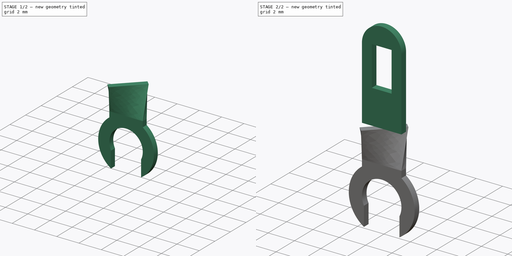
[diagram: build sequence overview — one tinted view per stage of 2, left to right]
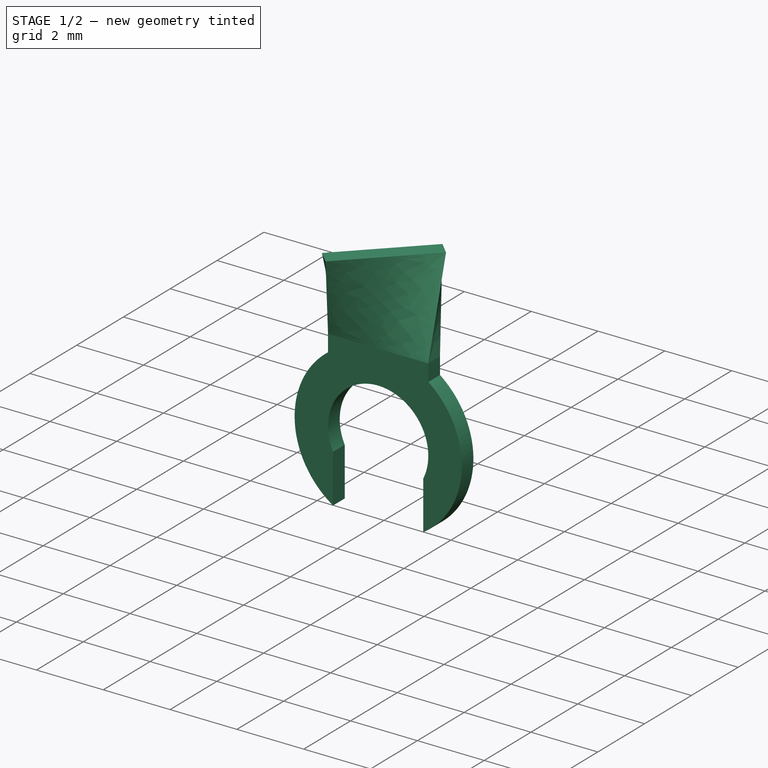
[diagram: stage 1 of 2 — iso view after this stage's code; geometry added in this stage tinted green]
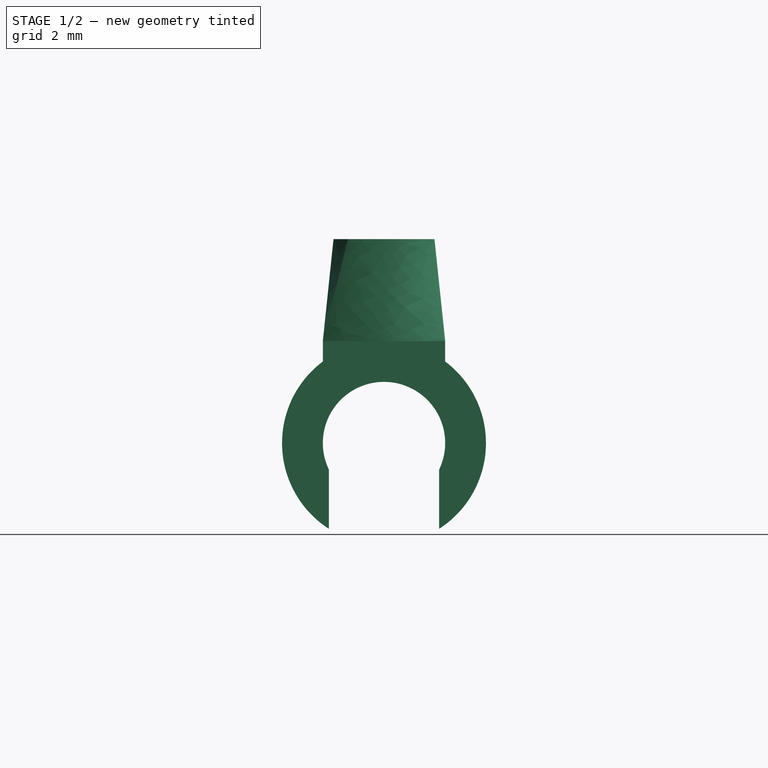
[diagram: stage 1 of 2 — front view after this stage's code; geometry added in this stage tinted green]
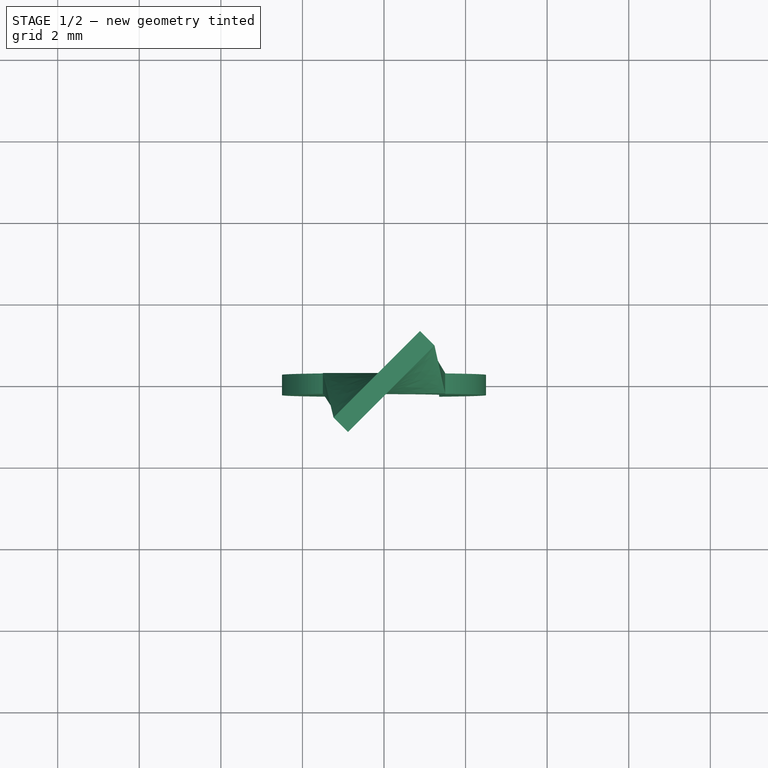
[diagram: stage 1 of 2 — top view after this stage's code; geometry added in this stage tinted green]
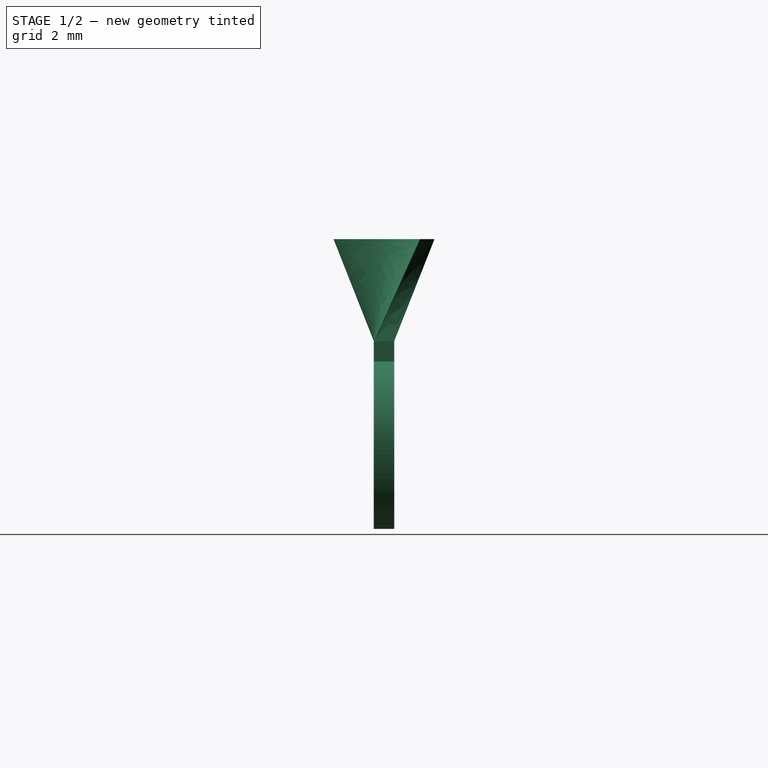
[diagram: stage 1 of 2 — right view after this stage's code; geometry added in this stage tinted green]
FCSTD DOCUMENT  (FreeCAD 0.20R29603 (Git))
Label: pin-mod
License: All rights reserved
LicenseURL: http://en.wikipedia.org/wiki/All_rights_reserved
objects: Sketcher::SketchObject×5, PartDesign::Body×3, PartDesign::Pad×2, PartDesign::AdditiveLoft×1, App::Part×1
note: 14 computed .brp shape members not serialized (recipe doc carries the construction recipe); baked Part::Feature solids carry a one-line shape summary decoded from their .brp

FEATURE [Sketcher::SketchObject] Sketch001
  FullyConstrained = true
  MapMode = 5
  Support = -> [XY_Plane]
FEATURE [PartDesign::Body] Body
  Group = -> [Sketch,Pad,Sketch001]
  Origin = -> Origin
  Tip = -> Pad
FEATURE [Sketcher::SketchObject] Sketch002
  AttachmentOffset = pos=(0,0,2.5) rot=(0,0,1;0rad)
  FullyConstrained = true
  MapMode = 5
  Placement = pos=(0,0,2.5) rot=(0,0,1;0rad)
  Support = -> [XY_Plane001]
  sketch-geometry (4):
    g0: LineSegment StartX=-1.5 StartY=0.25 StartZ=0 EndX=1.5 EndY=0.25 EndZ=0
    g1: LineSegment StartX=1.5 StartY=0.25 StartZ=0 EndX=1.5 EndY=-0.25 EndZ=0
    g2: LineSegment StartX=1.5 StartY=-0.25 StartZ=0 EndX=-1.5 EndY=-0.25 EndZ=0
    g3: LineSegment StartX=-1.5 StartY=-0.25 StartZ=0 EndX=-1.5 EndY=0.25 EndZ=0
  constraints (10):
    c: Coincident(g0,g1)
    c: Coincident(g1,g2)
    c: Coincident(g2,g3)
    c: Coincident(g3,g0)
    c: Horizontal(g2)
    c: Vertical(g3)
    c: Distance(g0) = 3
    c: Distance(g1) = 0.5
    c: Symmetric(g0,g0,g-2)
    c: Symmetric(g0,g1,g-1)
FEATURE [Sketcher::SketchObject] Sketch003
  AttachmentOffset = pos=(0,0,5) rot=(0,0,1;0rad)
  FullyConstrained = true
  MapMode = 5
  Placement = pos=(0,0,5) rot=(0,0,1;0rad)
  Support = -> [XY_Plane001]
  sketch-geometry (4):
    g0: LineSegment StartX=1.23744 StartY=0.883883 StartZ=0 EndX=-0.883883 EndY=-1.23744 EndZ=0
    g1: LineSegment StartX=-0.883883 StartY=-1.23744 StartZ=0 EndX=-1.23744 EndY=-0.883883 EndZ=0
    g2: LineSegment StartX=-1.23744 StartY=-0.883883 StartZ=0 EndX=0.883883 EndY=1.23744 EndZ=0
    g3: LineSegment StartX=0.883883 StartY=1.23744 StartZ=0 EndX=1.23744 EndY=0.883883 EndZ=0
  constraints (11):
    c: Coincident(g0,g1)
    c: Coincident(g1,g2)
    c: Coincident(g2,g3)
    c: Coincident(g3,g0)
    c: Perpendicular(g1,g0)
    c: Perpendicular(g2,g1)
    c: Perpendicular(g2,g3)
    c: Symmetric(g2,g0,g-1)
    c: Angle(g-1,g0) = 0.785398
    c: Distance(g1) = 0.5
    c: Distance(g0) = 3
FEATURE [PartDesign::AdditiveLoft] AdditiveLoft
  Closed = false
  Profile = -> Sketch003
  Ruled = false
  Sections = -> [Sketch002]
FEATURE [PartDesign::Body] Body001
  Group = -> [Sketch002,Sketch003,AdditiveLoft]
  Origin = -> Origin001
  Placement = pos=(0,0,0) rot=(0,0,1;-0.785398rad)
  Tip = -> AdditiveLoft
FEATURE [Sketcher::SketchObject] Sketch004
  FullyConstrained = true
  MapMode = 5
  Placement = pos=(0,0,0) rot=(1,0,0;1.5708rad)
  Support = -> [XZ_Plane003]
  sketch-geometry (9):
    g0: Circle CenterX=0 CenterY=0 CenterZ=0 NormalX=0 NormalY=0 NormalZ=1 AngleXU=0 Radius=1.5
    g1: LineSegment StartX=-1.5 StartY=2 StartZ=0 EndX=-1.5 EndY=2.5 EndZ=0
    g2: LineSegment StartX=-1.5 StartY=2.5 StartZ=0 EndX=1.5 EndY=2.5 EndZ=0
    g3: LineSegment StartX=1.5 StartY=2.5 StartZ=0 EndX=1.5 EndY=2 EndZ=0
    g4: ArcOfCircle CenterX=0 CenterY=0 CenterZ=0 NormalX=0 NormalY=0 NormalZ=1 AngleXU=0 Radius=1.5 StartAngle=5.83216 EndAngle=9.8758
    g5: ArcOfCircle CenterX=0 CenterY=0 CenterZ=0 NormalX=0 NormalY=0 NormalZ=1 AngleXU=0 Radius=2.5 StartAngle=2.2143 EndAngle=4.14195
    g6: ArcOfCircle CenterX=0 CenterY=0 CenterZ=0 NormalX=0 NormalY=0 NormalZ=1 AngleXU=0 Radius=2.5 StartAngle=5.28283 EndAngle=7.21048
    g7: LineSegment StartX=-1.35 StartY=-2.10416 StartZ=0 EndX=-1.35 EndY=-0.653835 EndZ=0
    g8: LineSegment StartX=1.35 StartY=-2.10416 StartZ=0 EndX=1.35 EndY=-0.653835 EndZ=0
  constraints (26):
    c: Coincident(g0,g-1)
    c: Diameter(g0) = 3
    c: Vertical(g1)
    c: Coincident(g1,g2)
    c: Horizontal(g2)
    c: Coincident(g2,g3)
    c: Vertical(g3)
    c: Distance(g2) = 3
    c: Horizontal(g1,g3)
    c: Distance(g0,g2) = 2.5
    c: Coincident(g4,g0)
    c: PointOnObject(g4,g0)
    c: Horizontal(g4,g4)
    c: Coincident(g5,g4)
    c: Coincident(g6,g4)
    c: Symmetric(g5,g6,g-2)
    c: Symmetric(g5,g6,g-2)
    c: Coincident(g7,g5)
    c: Coincident(g7,g4)
    c: Coincident(g8,g6)
    c: Coincident(g8,g4)
    c: Vertical(g8)
    c: Coincident(g1,g5)
    c: Diameter(g5) = 5
    c: Distance(g4,g4) = 2.7
    c: Coincident(g6,g3)
FEATURE [PartDesign::Pad] Pad001
  Direction = (0,-1,2e-16)
  Length = 0.5
  Length2 = 10
  Midplane = true
  Placement = pos=(0,0,0) rot=(1,0,0;1.5708rad)
  Profile = -> Sketch004
  ReferenceAxis = -> Sketch004 [N_Axis]
  Type = 0
FEATURE [PartDesign::Body] Body002
  Group = -> [Sketch004,Pad001]
  Origin = -> Origin003
  Placement = pos=(0,0,0) rot=(0,0,1;-0.785398rad)
  Tip = -> Pad001
FEATURE [App::Part] Part
  Group = -> [Body,Body001,Body002]
  Origin = -> Origin002
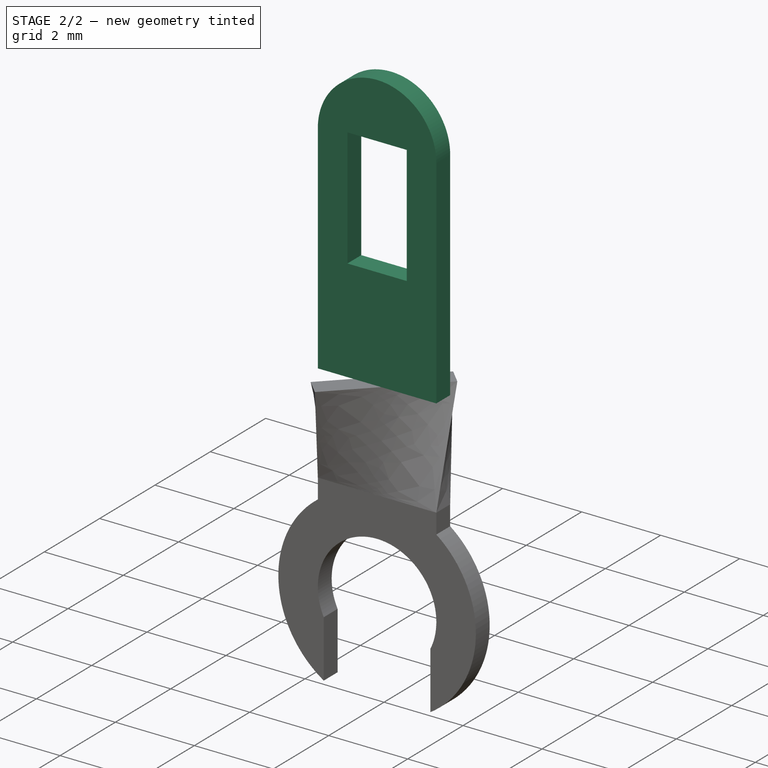
[diagram: stage 2 of 2 — iso view after this stage's code; geometry added in this stage tinted green]
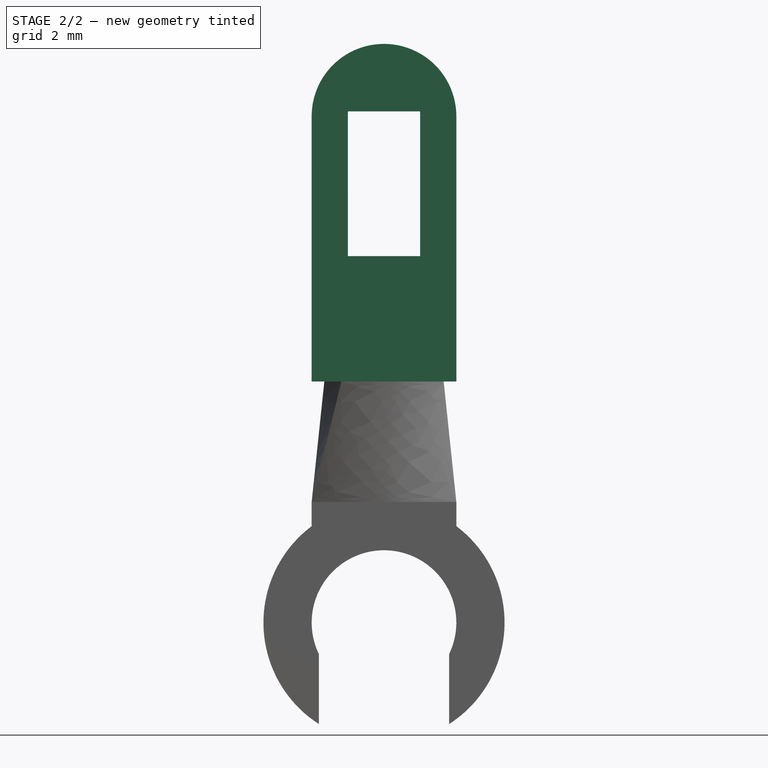
[diagram: stage 2 of 2 — front view after this stage's code; geometry added in this stage tinted green]
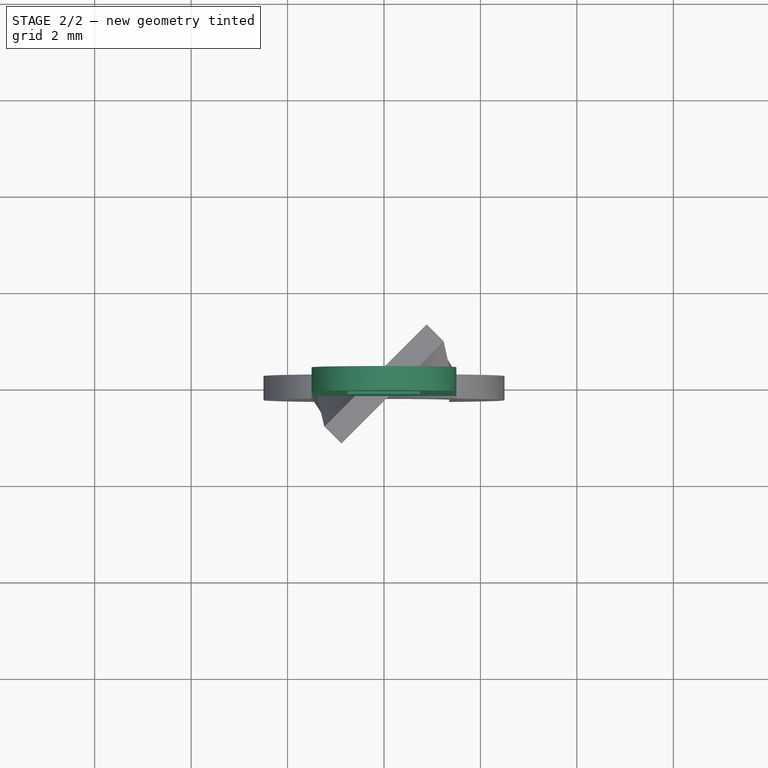
[diagram: stage 2 of 2 — top view after this stage's code; geometry added in this stage tinted green]
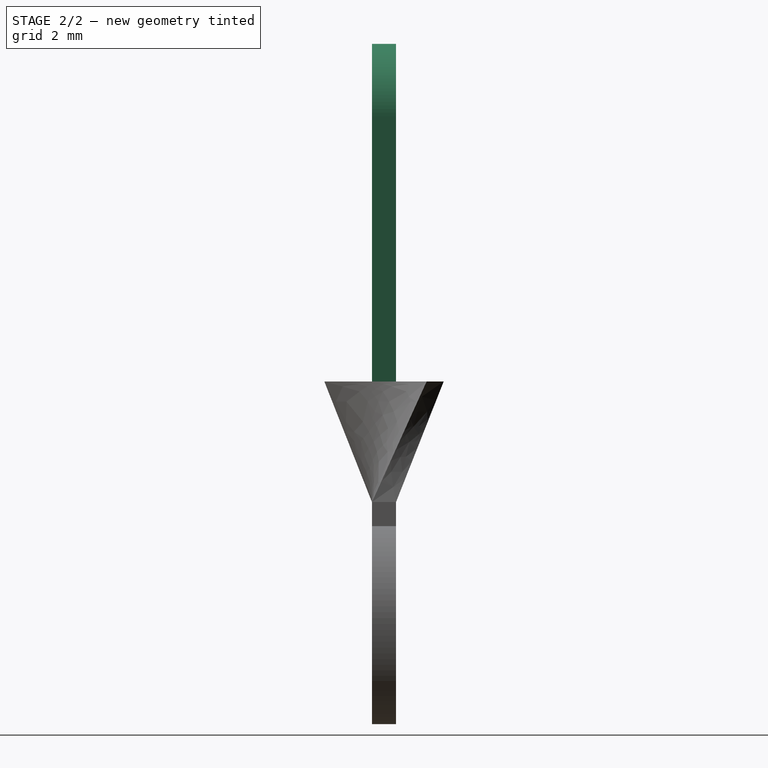
[diagram: stage 2 of 2 — right view after this stage's code; geometry added in this stage tinted green]
FEATURE [Sketcher::SketchObject] Sketch
  FullyConstrained = true
  MapMode = 5
  Placement = pos=(0,0,0) rot=(1,0,0;1.5708rad)
  Support = -> [XZ_Plane]
  sketch-geometry (9):
    g0: LineSegment StartX=-0.75 StartY=7.6 StartZ=0 EndX=-0.75 EndY=10.6 EndZ=0
    g1: LineSegment StartX=-0.75 StartY=10.6 StartZ=0 EndX=0.75 EndY=10.6 EndZ=0
    g2: LineSegment StartX=0.75 StartY=10.6 StartZ=0 EndX=0.75 EndY=7.6 EndZ=0
    g3: LineSegment StartX=0.75 StartY=7.6 StartZ=0 EndX=-0.75 EndY=7.6 EndZ=0
    g4: ArcOfCircle CenterX=0 CenterY=10.5 CenterZ=0 NormalX=0 NormalY=0 NormalZ=1 AngleXU=0 Radius=1.5 StartAngle=0 EndAngle=3.14159
    g5: LineSegment StartX=-1.5 StartY=10.5 StartZ=0 EndX=-1.5 EndY=5 EndZ=0
    g6: LineSegment StartX=1.5 StartY=10.5 StartZ=0 EndX=1.5 EndY=5 EndZ=0
    g7: LineSegment StartX=1.5 StartY=5 StartZ=0 EndX=-1.5 EndY=5 EndZ=0
    g8: GeomPoint X=0 Y=12 Z=0
  constraints (26):
    c: Vertical(g0)
    c: Coincident(g0,g1)
    c: Horizontal(g1)
    c: Coincident(g1,g2)
    c: Vertical(g2)
    c: Coincident(g2,g3)
    c: Coincident(g3,g0)
    c: Symmetric(g2,g0,g-2)
    c: Distance(g0) = 3
    c: Distance(g1) = 1.5
    c: PointOnObject(g4,g-2)
    c: Distance(g4,g1) = 0.1
    c: Horizontal(g4,g4)
    c: Horizontal(g4,g4)
    c: Coincident(g5,g4)
    c: Vertical(g5)
    c: Coincident(g6,g4)
    c: Vertical(g6)
    c: Coincident(g7,g6)
    c: Coincident(g7,g5)
    c: Horizontal(g7)
    c: PointOnObject(g8,g4)
    c: PointOnObject(g8,g-2)
    c: Radius(g4) = 1.5
    c: Distance(g-1,g8) = 12
    c: DistanceY(g-1,g6) = 5
FEATURE [PartDesign::Pad] Pad
  Direction = (0,-1,2e-16)
  Length = 0.5
  Length2 = 10
  Midplane = true
  Placement = pos=(0,0,0) rot=(1,0,0;1.5708rad)
  Profile = -> Sketch
  ReferenceAxis = -> Sketch [N_Axis]
  Type = 0
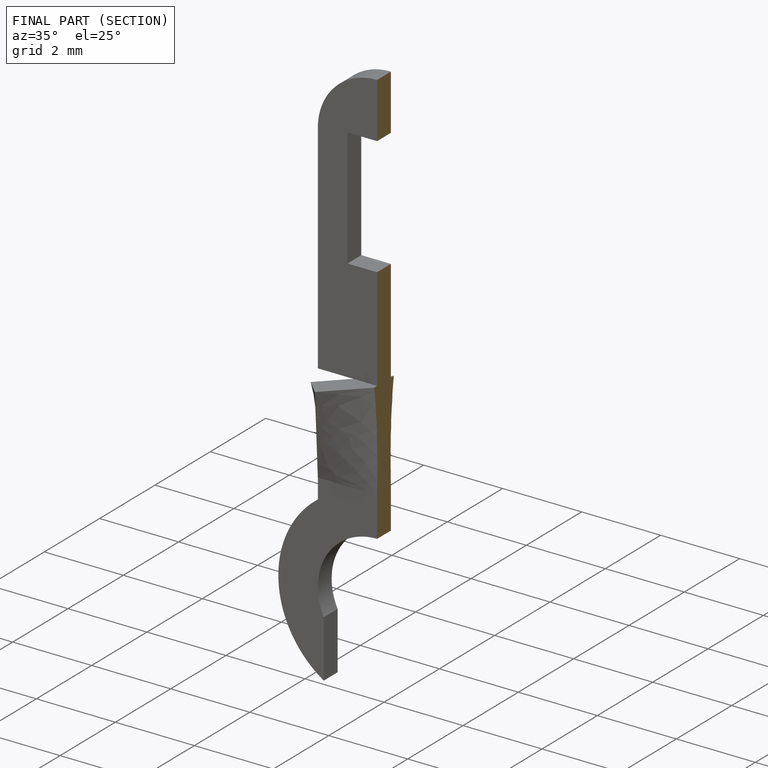
[diagram: finished part — half-section view (interior)]
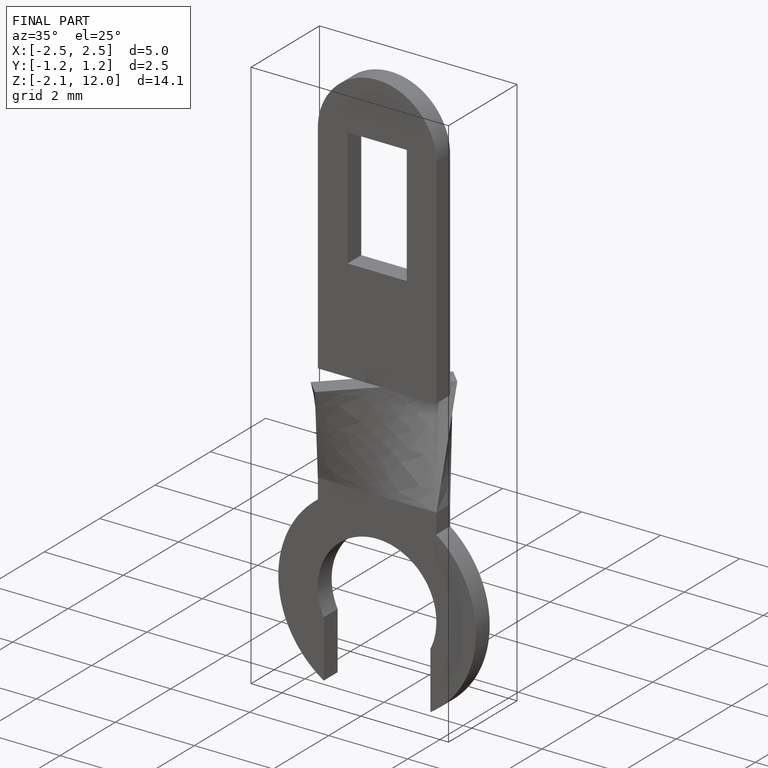
[diagram: finished part — iso view with bounding-box wireframe]
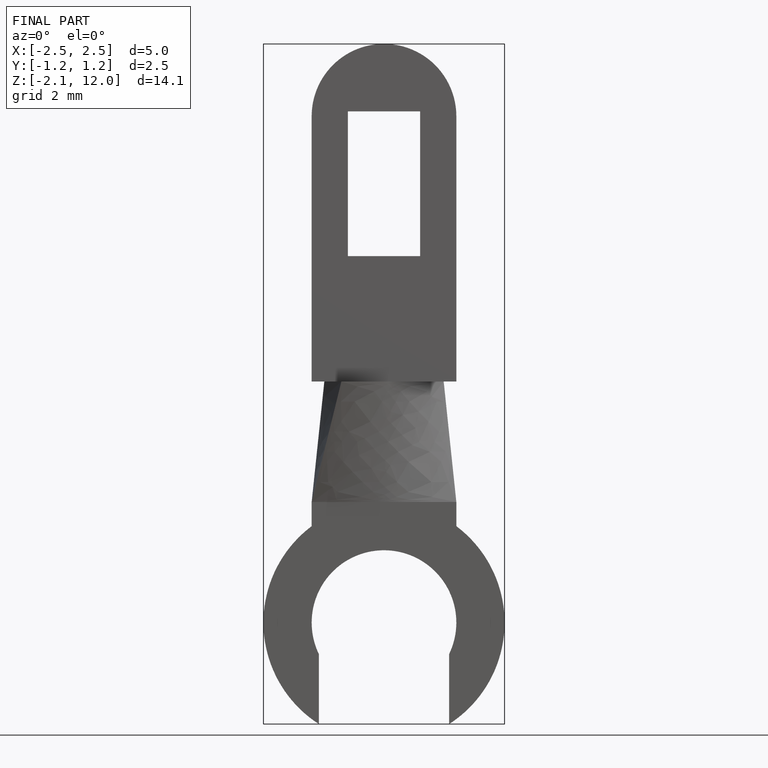
[diagram: finished part — front view with bounding-box wireframe]
